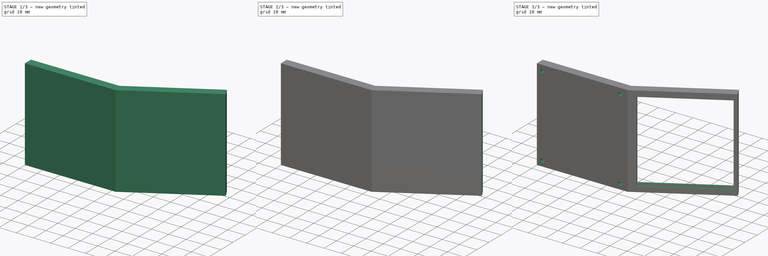
[diagram: build sequence overview — one tinted view per stage of 3, left to right]
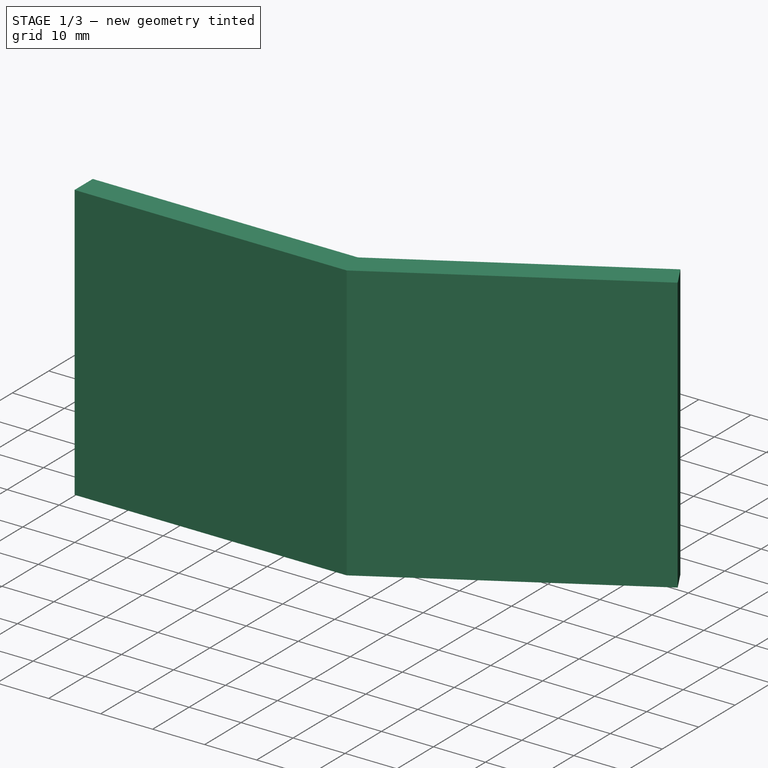
[diagram: stage 1 of 3 — iso view after this stage's code; geometry added in this stage tinted green]
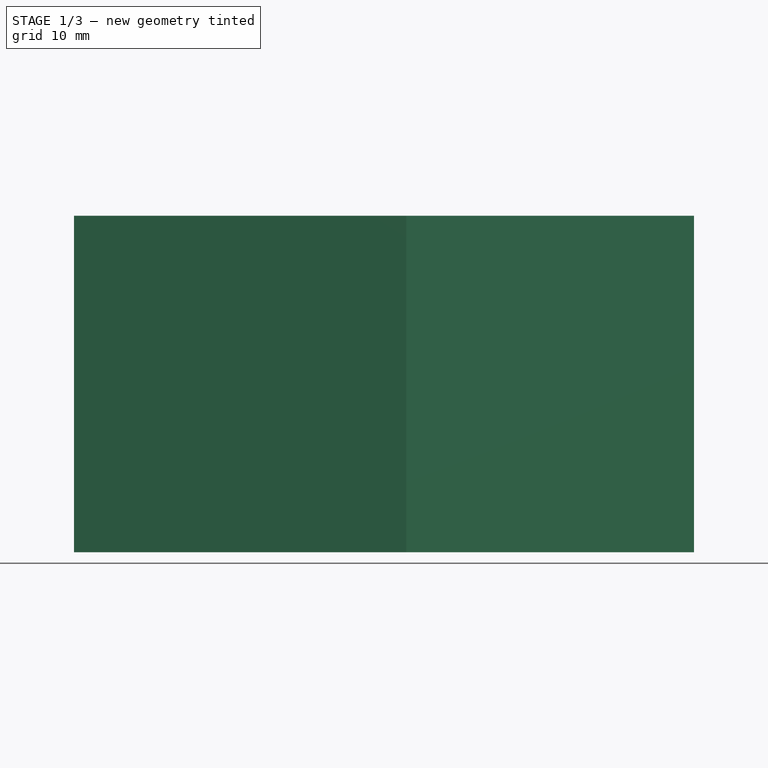
[diagram: stage 1 of 3 — front view after this stage's code; geometry added in this stage tinted green]
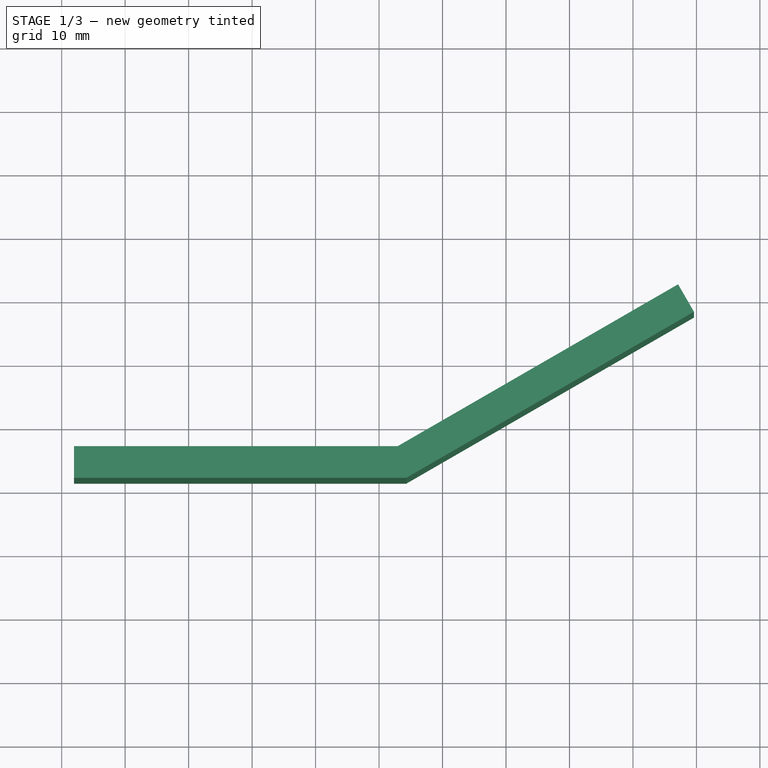
[diagram: stage 1 of 3 — top view after this stage's code; geometry added in this stage tinted green]
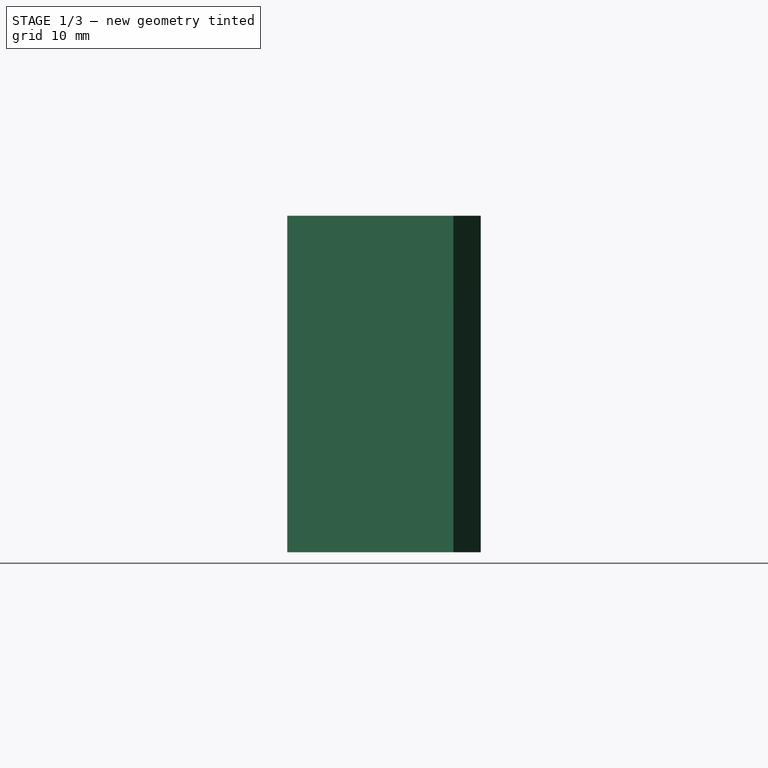
[diagram: stage 1 of 3 — right view after this stage's code; geometry added in this stage tinted green]
FCSTD DOCUMENT  (FreeCAD 0.19R24267 +148 (Git))
Label: Hinge for the mirror
License: All rights reserved
LicenseURL: http://en.wikipedia.org/wiki/All_rights_reserved
objects: Sketcher::SketchObject×4, PartDesign::Pocket×3, App::MeasureDistance×3, Part::Extrusion×1, PartDesign::FeatureBase×1, PartDesign::Body×1
note: 13 computed .brp shape members not serialized (recipe doc carries the construction recipe); baked Part::Feature solids carry a one-line shape summary decoded from their .brp

FEATURE [Sketcher::SketchObject] Sketch
  FullyConstrained = false
  sketch-geometry (6):
    g0: LineSegment StartX=-48.0532 StartY=36.4673 StartZ=0 EndX=2.9468 EndY=36.4673 EndZ=0
    g1: LineSegment StartX=2.9468 StartY=36.4673 StartZ=0 EndX=47.1141 EndY=61.9673 EndZ=0
    g2: LineSegment StartX=47.1141 StartY=61.9673 StartZ=0 EndX=49.6141 EndY=57.6372 EndZ=0
    g3: LineSegment StartX=49.6141 StartY=57.6372 StartZ=0 EndX=4.28655 EndY=31.4673 EndZ=0
    g4: LineSegment StartX=4.28655 StartY=31.4673 StartZ=0 EndX=-48.0532 EndY=31.4673 EndZ=0
    g5: LineSegment StartX=-48.0532 StartY=31.4673 StartZ=0 EndX=-48.0532 EndY=36.4673 EndZ=0
  constraints (16):
    c: Horizontal(g0)
    c: Coincident(g0,g1)
    c: Coincident(g1,g2)
    c: Coincident(g2,g3)
    c: Coincident(g3,g4)
    c: Horizontal(g4)
    c: Coincident(g4,g5)
    c: Coincident(g5,g0)
    c: Parallel(g1,g3)
    c: Perpendicular(g1,g2)
    c: Perpendicular(g5,g0)
    c: Angle(g1,g0) = 2.61799
    c: Distance(g0,g1) = 51
    c: Distance(g0,g0) = 51
    c: Distance(g0,g4) = 5
    c: Distance(g1,g2) = 5
FEATURE [Part::Extrusion] Extrude
  Base = -> Sketch
  Dir = (0,0,1)
  DirMode = 2
  FaceMakerClass = Part::FaceMakerBullseye
  LengthFwd = 53
  LengthRev = 0
  Solid = true
  Symmetric = false
FEATURE [Sketcher::SketchObject] Sketch001
  FullyConstrained = false
  MapMode = 5
  Placement = pos=(62.1682,35.8928,0) rot=(0.377964,0.654654,0.654654;2.41886rad)
  Support = -> [Extrude]
  sketch-geometry (4):
    g0: LineSegment StartX=26.0853 StartY=52 StartZ=0 EndX=29.0853 EndY=52 EndZ=0
    g1: LineSegment StartX=29.0853 StartY=52 StartZ=0 EndX=29.0853 EndY=1 EndZ=0
    g2: LineSegment StartX=29.0853 StartY=1 StartZ=0 EndX=26.0853 EndY=1 EndZ=0
    g3: LineSegment StartX=26.0853 StartY=1 StartZ=0 EndX=26.0853 EndY=52 EndZ=0
  constraints (11):
    c: Coincident(g0,g1)
    c: Coincident(g1,g2)
    c: Coincident(g2,g3)
    c: Coincident(g3,g0)
    c: Horizontal(g0)
    c: Horizontal(g2)
    c: Vertical(g1)
    c: Vertical(g3)
    c: Distance(g0,g0) = 3
    c: Distance(g0,g2) = 51
    c: DistanceY(g-1,g2) = 1
FEATURE [PartDesign::FeatureBase] BaseFeature
  BaseFeature = -> Extrude
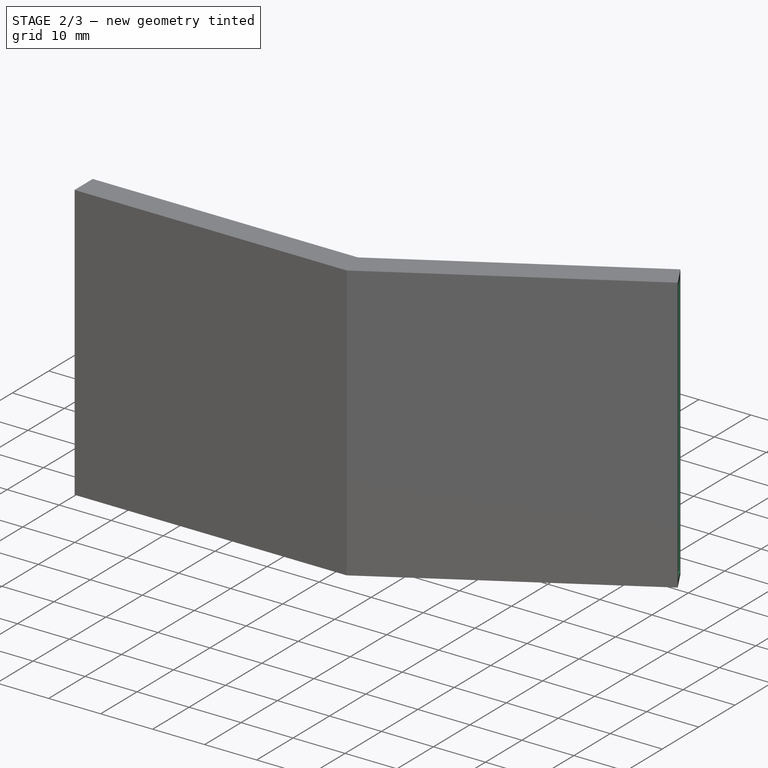
[diagram: stage 2 of 3 — iso view after this stage's code; geometry added in this stage tinted green]
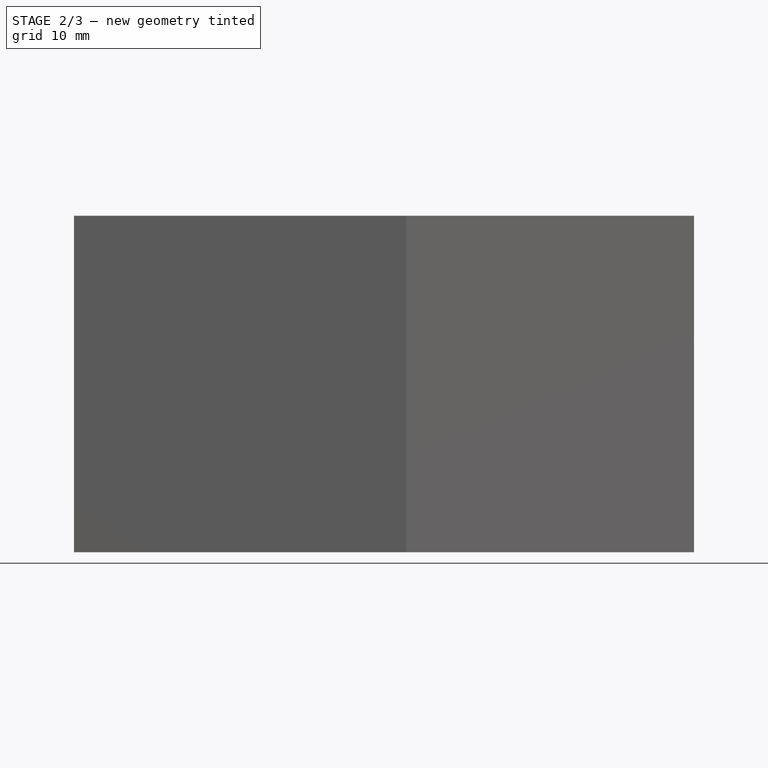
[diagram: stage 2 of 3 — front view after this stage's code; geometry added in this stage tinted green]
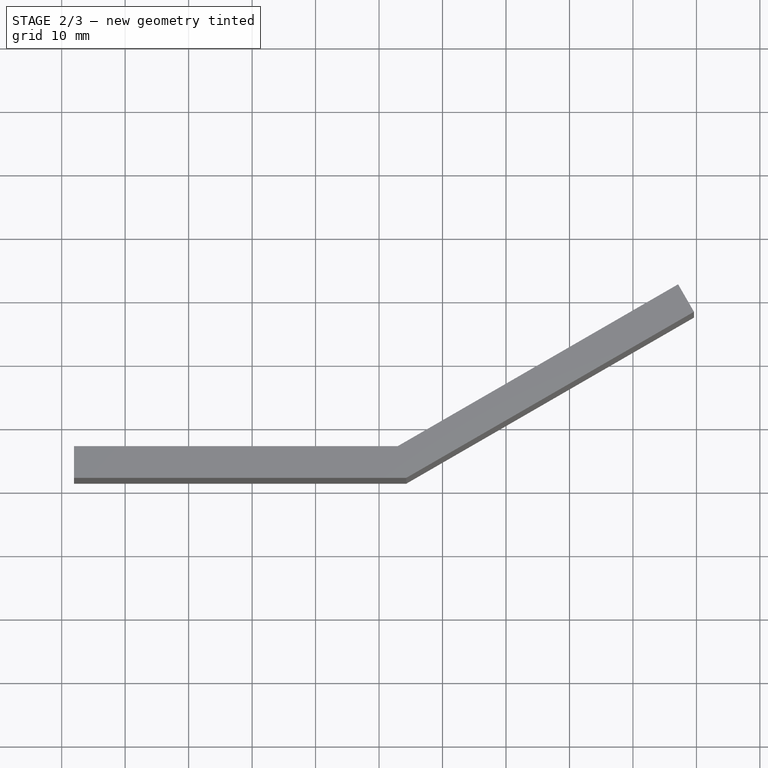
[diagram: stage 2 of 3 — top view after this stage's code; geometry added in this stage tinted green]
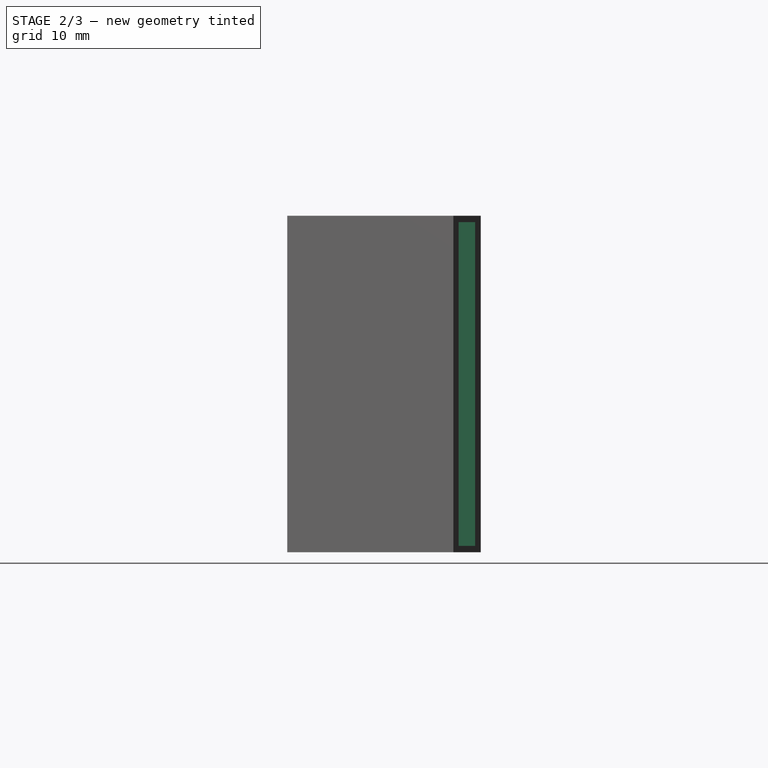
[diagram: stage 2 of 3 — right view after this stage's code; geometry added in this stage tinted green]
FEATURE [PartDesign::Pocket] Pocket
  BaseFeature = -> BaseFeature
  Length = 51
  Length2 = 100
  Profile = -> Sketch001
  Type = 0
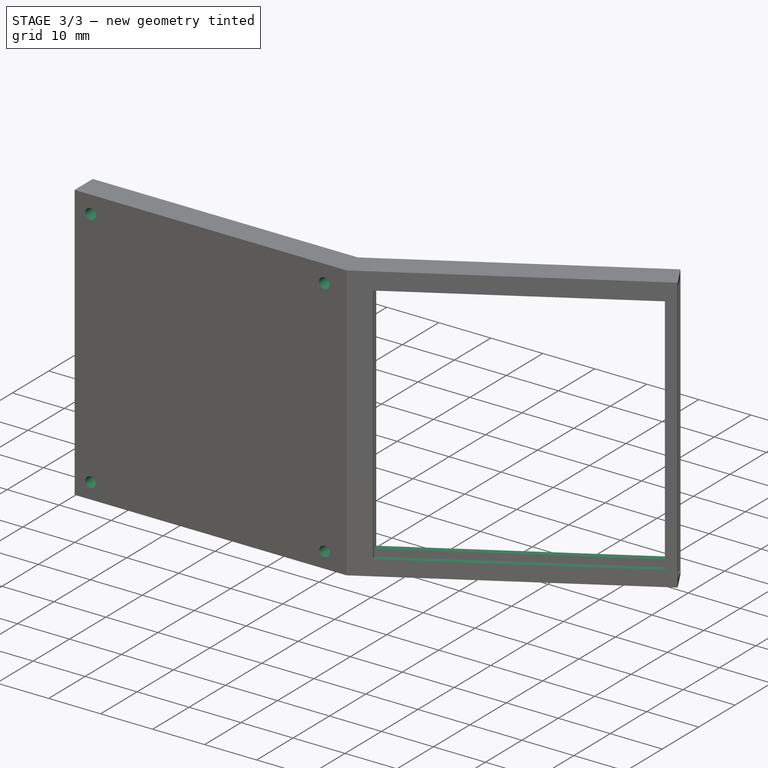
[diagram: stage 3 of 3 — iso view after this stage's code; geometry added in this stage tinted green]
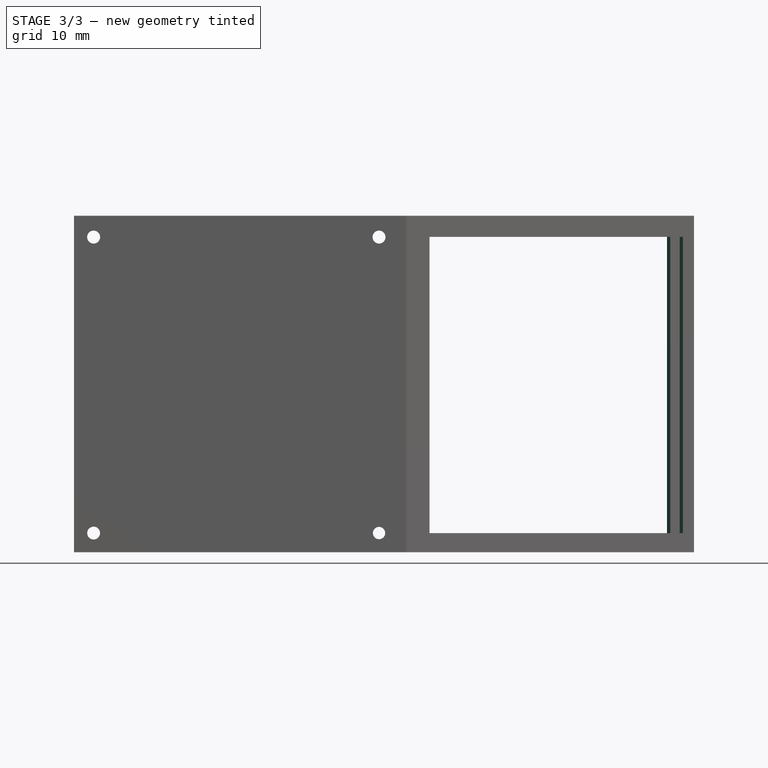
[diagram: stage 3 of 3 — front view after this stage's code; geometry added in this stage tinted green]
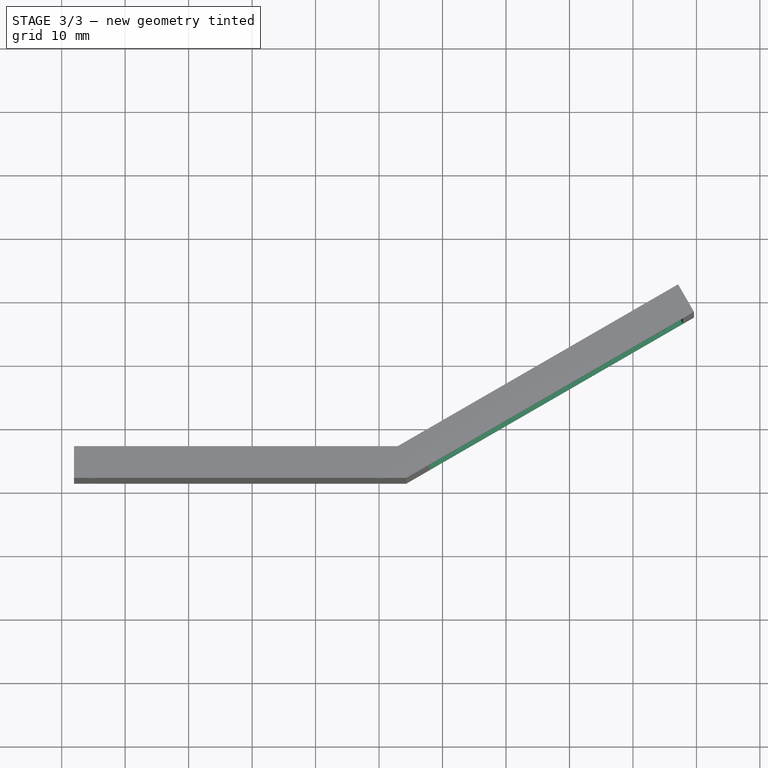
[diagram: stage 3 of 3 — top view after this stage's code; geometry added in this stage tinted green]
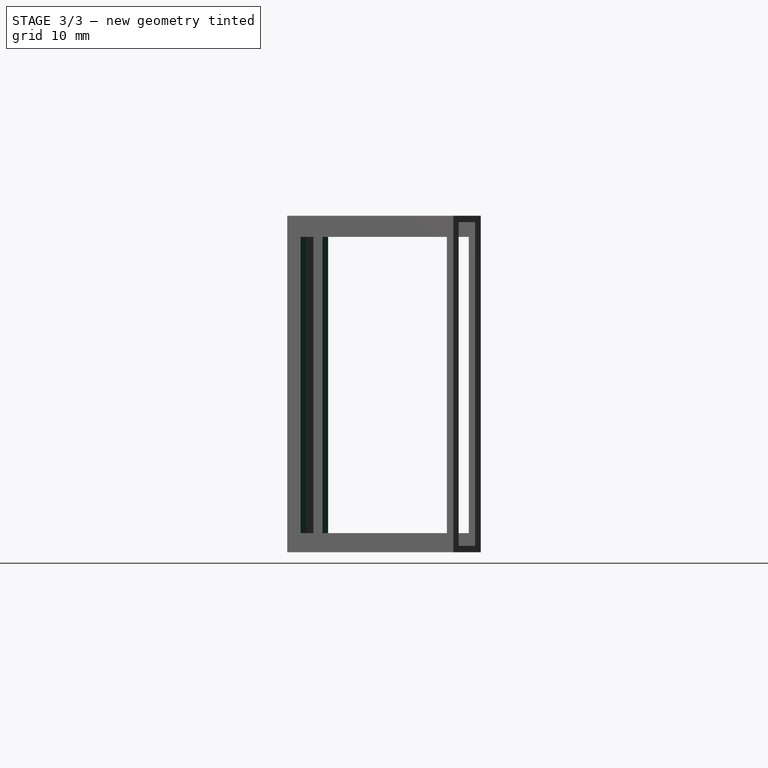
[diagram: stage 3 of 3 — right view after this stage's code; geometry added in this stage tinted green]
FEATURE [Sketcher::SketchObject] Sketch002
  FullyConstrained = false
  MapMode = 5
  Placement = pos=(-15.0541,26.0745,0) rot=(-0.186157,0.694747,0.694747;3.50969rad)
  Support = -> [Pocket]
  sketch-geometry (4):
    g0: LineSegment StartX=-69.7705 StartY=3.00196 StartZ=0 EndX=-23.6635 EndY=3.00196 EndZ=0
    g1: LineSegment StartX=-23.6635 StartY=3.00196 StartZ=0 EndX=-23.6635 EndY=49.6726 EndZ=0
    g2: LineSegment StartX=-23.6635 StartY=49.6726 StartZ=0 EndX=-69.7705 EndY=49.6726 EndZ=0
    g3: LineSegment StartX=-69.7705 StartY=49.6726 StartZ=0 EndX=-69.7705 EndY=3.00196 EndZ=0
  constraints (8):
    c: Coincident(g0,g1)
    c: Coincident(g1,g2)
    c: Coincident(g2,g3)
    c: Coincident(g3,g0)
    c: Horizontal(g0)
    c: Horizontal(g2)
    c: Vertical(g1)
    c: Vertical(g3)
FEATURE [PartDesign::Pocket] Pocket001
  BaseFeature = -> Pocket
  Length = 5
  Length2 = 100
  Profile = -> Sketch002
  Type = 0
FEATURE [Sketcher::SketchObject] Sketch003
  FullyConstrained = false
  MapMode = 5
  Placement = pos=(0,36.4673,0) rot=(0,0.707107,0.707107;3.14159rad)
  Support = -> [Pocket001]
  sketch-geometry (4):
    g0: Circle CenterX=0 CenterY=3.0163 CenterZ=0 NormalX=0 NormalY=0 NormalZ=1 AngleXU=0 Radius=0.967921
    g1: Circle CenterX=0 CenterY=49.6428 CenterZ=0 NormalX=0 NormalY=0 NormalZ=1 AngleXU=0 Radius=1.02027
    g2: Circle CenterX=44.9656 CenterY=3.01632 CenterZ=0 NormalX=0 NormalY=0 NormalZ=1 AngleXU=0 Radius=1.01002
    g3: Circle CenterX=44.9656 CenterY=49.6428 CenterZ=0 NormalX=0 NormalY=0 NormalZ=1 AngleXU=0 Radius=1.02027
  constraints (2):
    c: PointOnObject(g0,g-2)
    c: PointOnObject(g1,g-2)
FEATURE [PartDesign::Pocket] Pocket002
  BaseFeature = -> Pocket001
  Length = 5
  Length2 = 100
  Profile = -> Sketch003
  Type = 0
FEATURE [PartDesign::Body] Body
  BaseFeature = -> Extrude
  Group = -> [BaseFeature,Sketch001,Pocket,Sketch002,Pocket001,Sketch003,Pocket002]
  Origin = -> Origin
  Tip = -> Pocket002
FEATURE [App::MeasureDistance] Distance  label="Distance: 51.00 mm"
  Distance = 51.0034
  P1 = (48.4799,59.6016,52)
  P2 = (48.1854,60.1118,1)
FEATURE [App::MeasureDistance] Distance001  label="Distance: 3.20 mm"
  Distance = 3.20305
  P1 = (49.1255,58.4834,29.2374)
  P2 = (47.6255,61.0814,30.3597)
FEATURE [App::MeasureDistance] Distance002  label="Distance: 51.11 mm"
  Distance = 51.1128
  P1 = (47.6255,61.0814,40.9705)
  P2 = (3.6686,35.2171,37.6036)
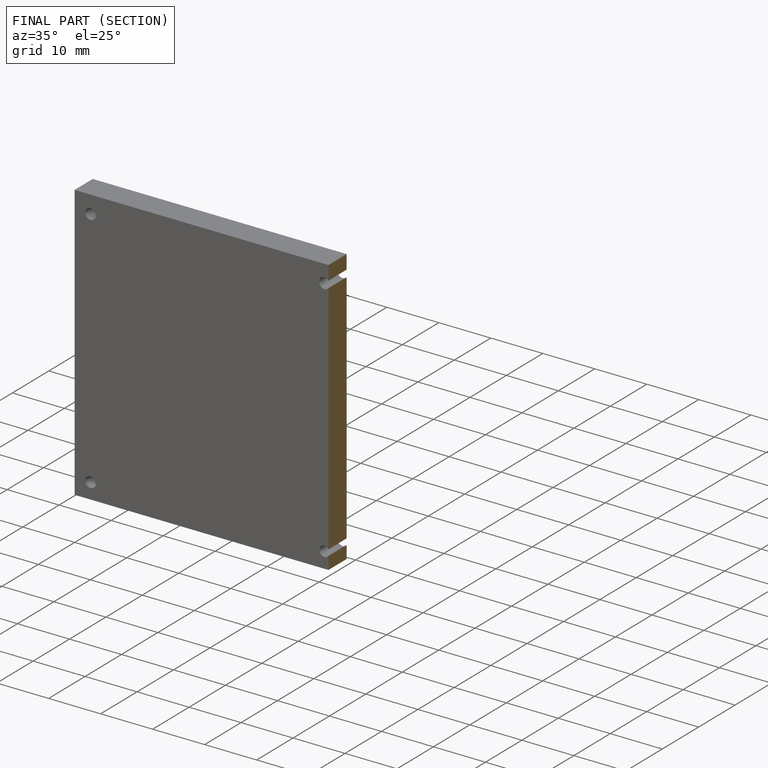
[diagram: finished part — half-section view (interior)]
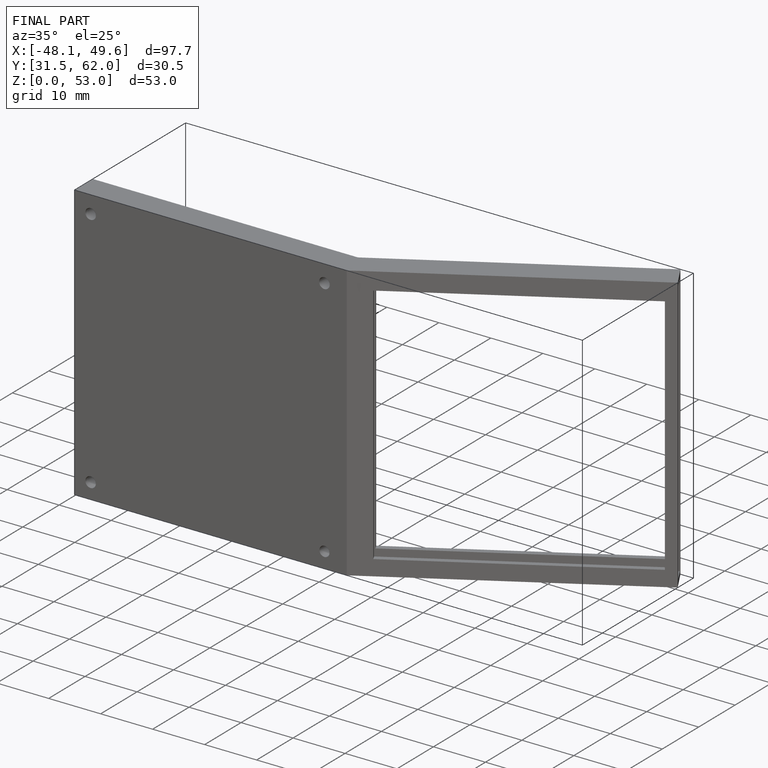
[diagram: finished part — iso view with bounding-box wireframe]
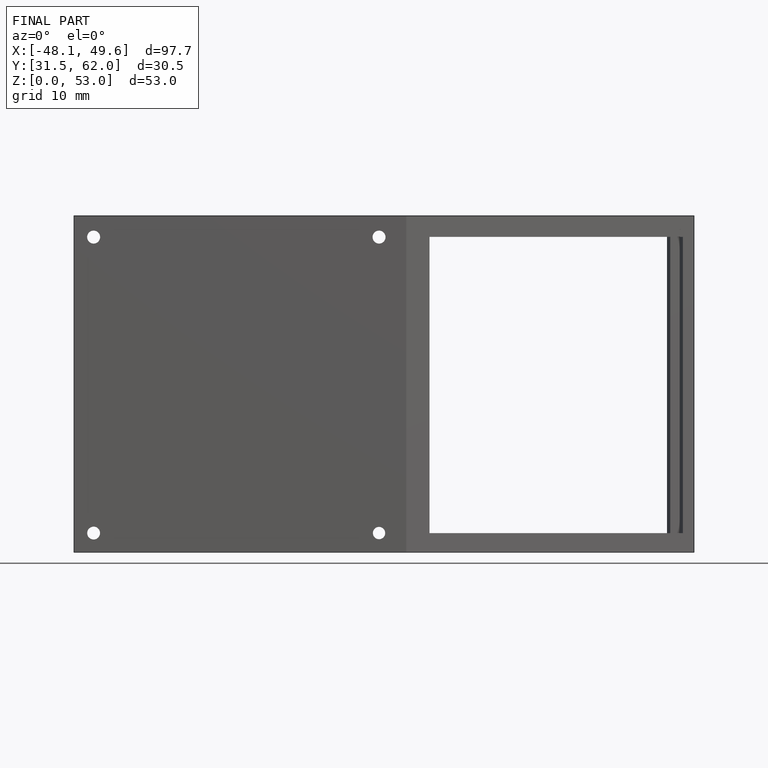
[diagram: finished part — front view with bounding-box wireframe]
